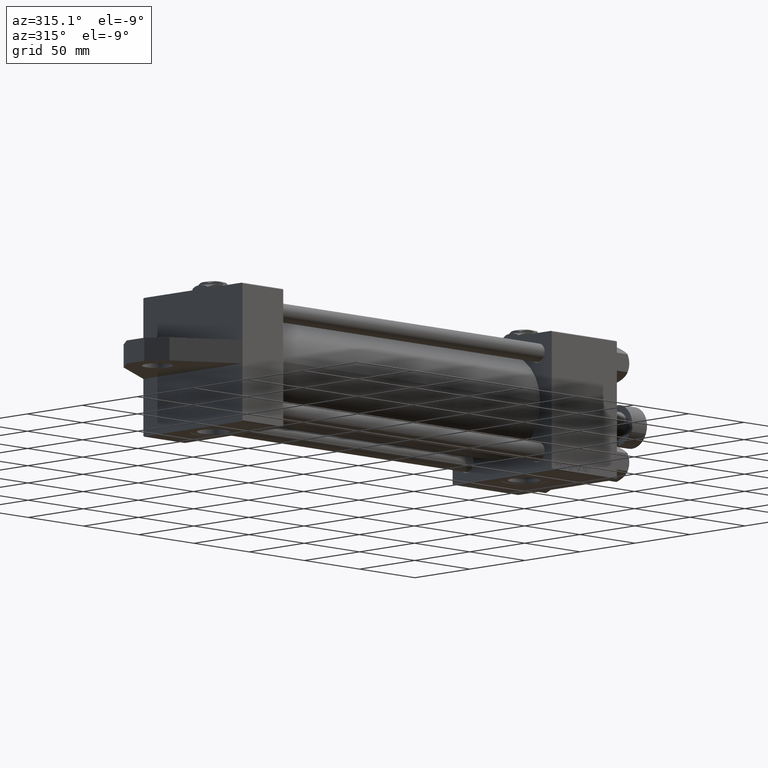
[diagram: clean part render]
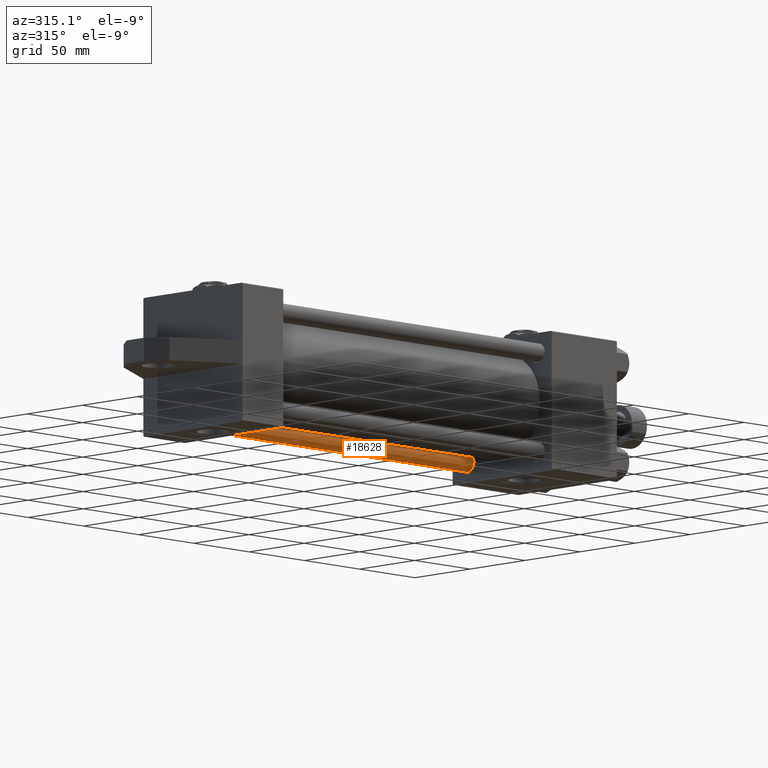
[diagram: same view with one face highlighted and labeled with its STEP entity id]
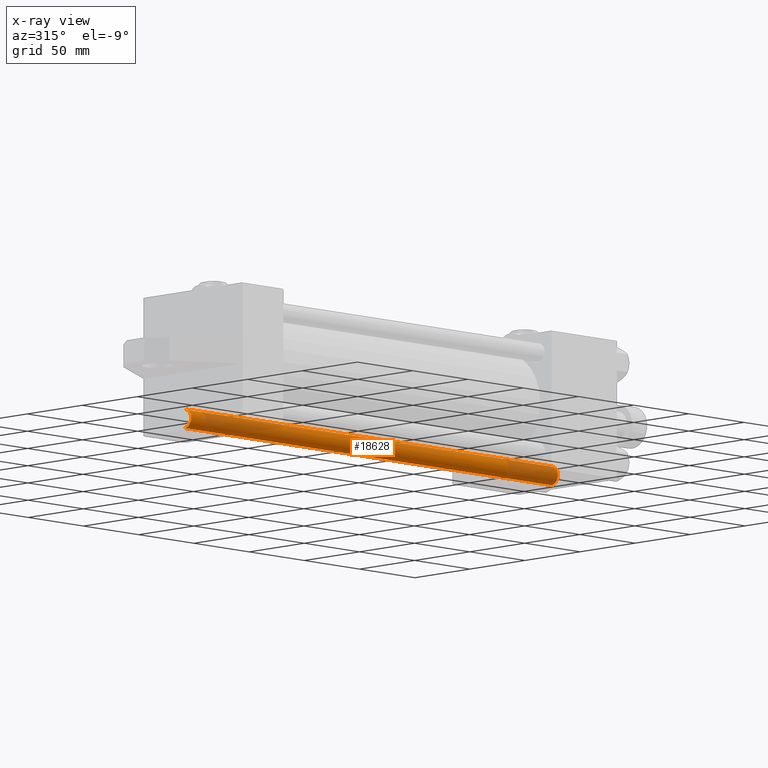
[diagram: x-ray of the same camera — body ghosted, the highlighted face saturated]
A machine part, auxiliary view. The second image highlights one B-rep face of the part: STEP entity #18628.
The next image is the same camera in x-ray: the body ghosted, the highlighted face saturated — about 26% of this face is hidden behind the body in this view.
In plain terms, the highlighted cylindrical surface (edge-blend (fillet) strip) has radius 6 mm, axis along (1, -0, -0).
Its self-contained STEP definition (entity closure, byte-faithful):
#107 = ORIENTED_EDGE ( 'NONE', *, *, #33402, .T. ) ;
#5461 = VERTEX_POINT ( 'NONE', #47038 ) ;
#6800 = CIRCLE ( 'NONE', #22517, 6.000000000000000888 ) ;
#7023 = VECTOR ( 'NONE', #29260, 1000.000000000000000 ) ;
#7150 = VECTOR ( 'NONE', #8254, 1000.000000000000000 ) ;
#7256 = AXIS2_PLACEMENT_3D ( 'NONE', #39601, #35919, #47690 ) ;
#7267 = DIRECTION ( 'NONE',  ( -0.000000000000000000, -0.000000000000000000, -1.000000000000000000 ) ) ;
#8000 = CARTESIAN_POINT ( 'NONE',  ( 6.000000000000000888, 7.347880794884120722E-16, 333.0000000000000000 ) ) ;
#8254 = DIRECTION ( 'NONE',  ( -0.000000000000000000, -0.000000000000000000, -1.000000000000000000 ) ) ;
#8402 = VERTEX_POINT ( 'NONE', #47225 ) ;
#13900 = CARTESIAN_POINT ( 'NONE',  ( 6.000000000000000888, 7.347880794884120722E-16, 0.5000000000000004441 ) ) ;
#14186 = VERTEX_POINT ( 'NONE', #13900 ) ;
#14639 = EDGE_CURVE ( 'NONE', #5461, #8402, #25337, .T. ) ;
#16127 = DIRECTION ( 'NONE',  ( 1.000000000000000000, 0.000000000000000000, 0.000000000000000000 ) ) ;
#18102 = DIRECTION ( 'NONE',  ( -1.000000000000000000, 0.000000000000000000, 0.000000000000000000 ) ) ;
#18192 = CARTESIAN_POINT ( 'NONE',  ( -6.000000000000000888, 0.000000000000000000, 333.0000000000000000 ) ) ;
#18628 = ADVANCED_FACE ( 'NONE', ( #44140 ), #29883, .T. ) ;
#19797 = LINE ( 'NONE', #8000, #7150 ) ;
#19827 = DIRECTION ( 'NONE',  ( 0.000000000000000000, 0.000000000000000000, -1.000000000000000000 ) ) ;
#19923 = EDGE_LOOP ( 'NONE', ( #41641, #32724, #40114, #107 ) ) ;
#20845 = VERTEX_POINT ( 'NONE', #30430 ) ;
#22517 = AXIS2_PLACEMENT_3D ( 'NONE', #31872, #19827, #16127 ) ;
#25337 = LINE ( 'NONE', #18192, #7023 ) ;
#27474 = AXIS2_PLACEMENT_3D ( 'NONE', #40939, #7267, #18102 ) ;
#29260 = DIRECTION ( 'NONE',  ( -0.000000000000000000, -0.000000000000000000, -1.000000000000000000 ) ) ;
#29883 = CYLINDRICAL_SURFACE ( 'NONE', #27474, 6.000000000000000888 ) ;
#30430 = CARTESIAN_POINT ( 'NONE',  ( 6.000000000000000888, 7.347880794884120722E-16, 332.5000000000001137 ) ) ;
#31815 = EDGE_CURVE ( 'NONE', #20845, #14186, #19797, .T. ) ;
#31872 = CARTESIAN_POINT ( 'NONE',  ( 0.000000000000000000, 0.000000000000000000, 332.5000000000001137 ) ) ;
#32724 = ORIENTED_EDGE ( 'NONE', *, *, #46651, .T. ) ;
#33402 = EDGE_CURVE ( 'NONE', #8402, #14186, #42549, .T. ) ;
#35919 = DIRECTION ( 'NONE',  ( -0.000000000000000000, -0.000000000000000000, 1.000000000000000000 ) ) ;
#39601 = CARTESIAN_POINT ( 'NONE',  ( 0.000000000000000000, 0.000000000000000000, 0.5000000000000004441 ) ) ;
#40114 = ORIENTED_EDGE ( 'NONE', *, *, #14639, .T. ) ;
#40939 = CARTESIAN_POINT ( 'NONE',  ( 0.000000000000000000, 0.000000000000000000, 333.0000000000000000 ) ) ;
#41641 = ORIENTED_EDGE ( 'NONE', *, *, #31815, .F. ) ;
#42549 = CIRCLE ( 'NONE', #7256, 6.000000000000000888 ) ;
#44140 = FACE_OUTER_BOUND ( 'NONE', #19923, .T. ) ;
#46651 = EDGE_CURVE ( 'NONE', #20845, #5461, #6800, .T. ) ;
#47038 = CARTESIAN_POINT ( 'NONE',  ( -6.000000000000000888, 0.000000000000000000, 332.5000000000001137 ) ) ;
#47225 = CARTESIAN_POINT ( 'NONE',  ( -6.000000000000000888, 0.000000000000000000, 0.5000000000000004441 ) ) ;
#47690 = DIRECTION ( 'NONE',  ( 1.000000000000000000, 0.000000000000000000, 0.000000000000000000 ) ) ;